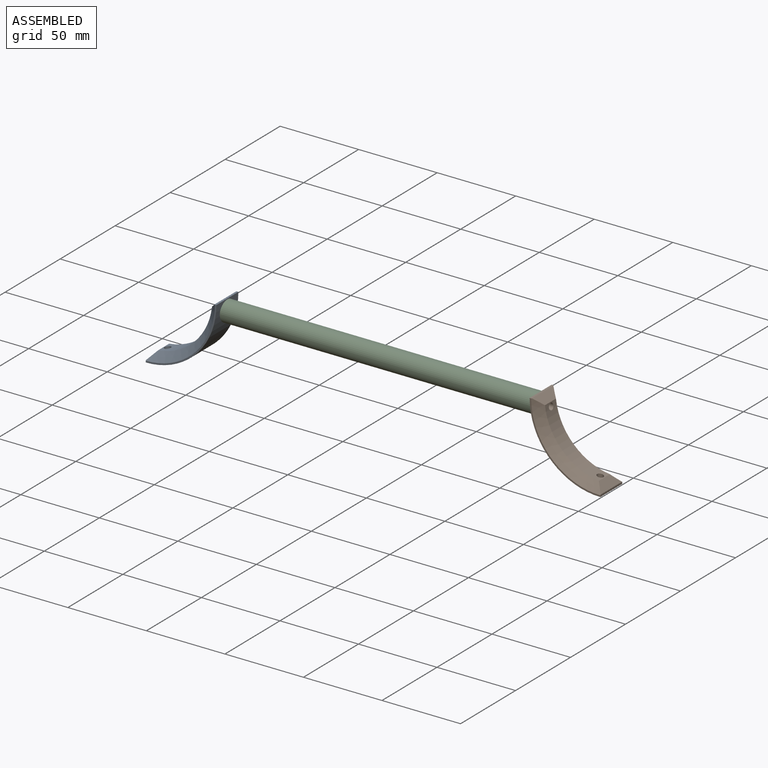
[diagram: assembled view]
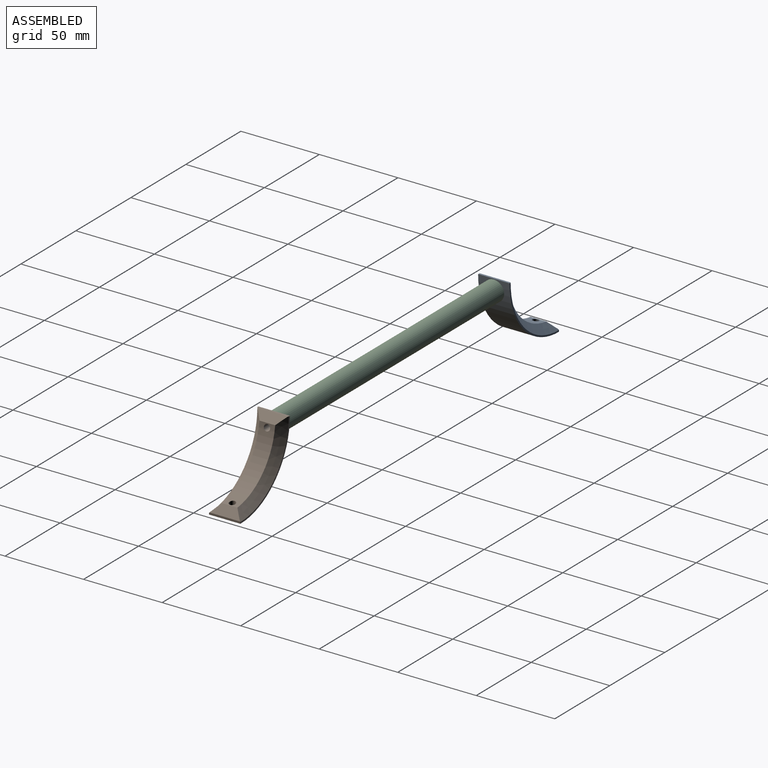
[diagram: assembled view, second angle]
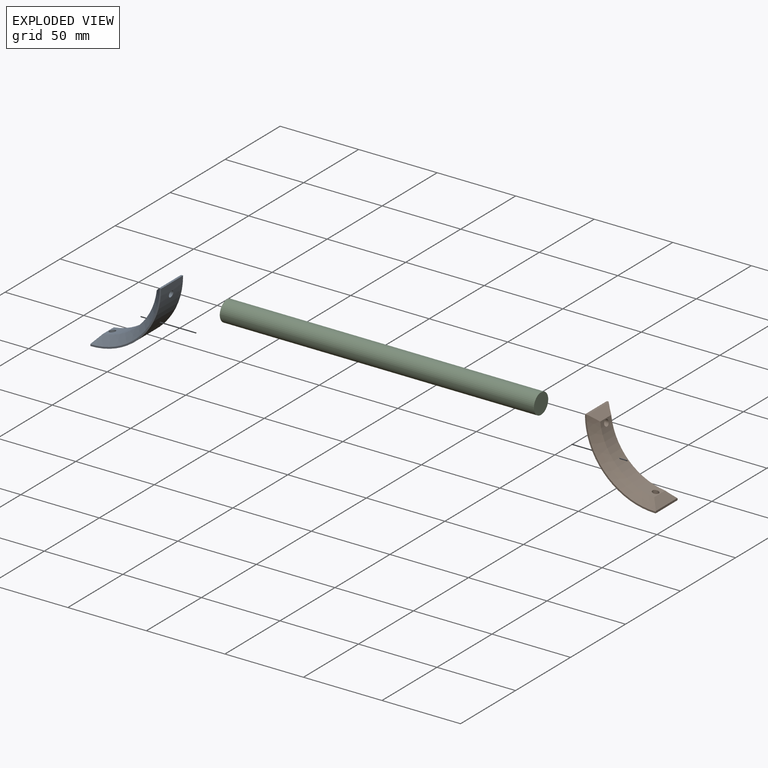
[diagram: exploded view]
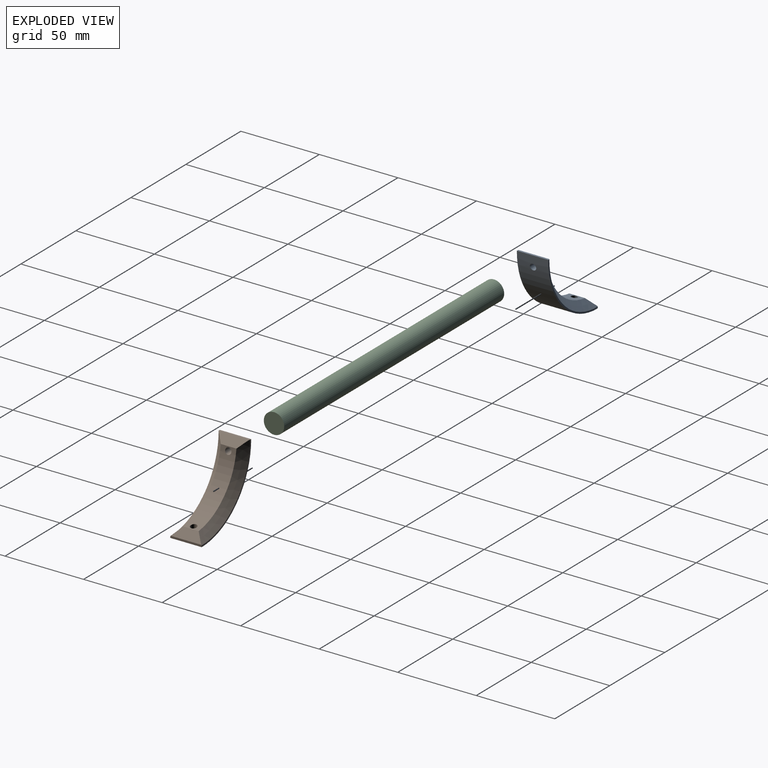
[diagram: exploded view, second angle]
ASSEMBLY  parts=3 mates=2
PART A: 12 faces, bbox 45x45x20 mm
  f0: cylinder r=39mm len=34.32mm, axis (0,0,-1), area 498.2mm2, adj f6,f7,f8,f9,f10,f11
  f1: plane 20x1.29mm, normal (1,0,0), area 25.6mm2, adj f2,f4,f5,f6,f7,f9
  f2: cylinder r=45mm len=45mm, axis (0,0,-1), area 1388.2mm2, adj f1,f3,f4,f5,f10,f11
  f3: plane 20x1.29mm, normal (0,-1,0), area 25.6mm2, adj f2,f4,f5,f6,f8,f9
  f4: plane 45x45mm, normal (0,0,1), area 69.9mm2, adj f1,f2,f3,f9
  f5: plane 45x45mm, normal (0,0,-1), area 69.9mm2, adj f1,f2,f3,f6
  f6: cone r=44mm half-angle=45deg, axis (0,0,-1), area 431.9mm2, adj f0,f1,f3,f5,f7,f8
  f7: plane 19.43x4.97mm, normal (0.75,-0.67,0), area 97.4mm2, adj f0,f1,f6,f9
  f8: plane 19.43x4.97mm, normal (0.67,-0.75,0), area 97.4mm2, adj f0,f3,f6,f9
  f9: cone r=39mm half-angle=45deg, axis (0,0,1), area 431.9mm2, adj f0,f1,f3,f4,f7,f8
  f10: cylinder r=2mm len=6.77mm, axis (1,0,0), area 76.5mm2, adj f0,f2
  f11: cylinder r=2mm len=6.77mm, axis (0,-1,0), area 76.5mm2, adj f0,f2
PART B: same geometry as A
PART C: 3 faces, bbox 13x13x200 mm
  f0: cylinder r=6.5mm len=200mm, axis (0,0,-1), area 8168.1mm2, adj f1,f2
  f1: plane 13x13mm, normal (0,0,1), area 132.7mm2, adj f0
  f2: plane 13x13mm, normal (0,0,-1), area 132.7mm2, adj f0
PLACE A rot(axis=(0,-0.71,0.71),180deg) t=(-134.79,33.28,25.02)mm
PLACE B rot(axis=(-1,0,0),90deg) t=(154.74,13.15,25.02)mm
PLACE C rot(axis=(0,-1,0),90deg) t=(9.98,23.22,18.02)mm
MATE fastened B.f10 <-> C.f0  axis (1,0,0) through (109.98,23.22,18.02)mm
MATE fastened A.f10 <-> C.f0  axis (-1,0,0) through (-90.02,23.22,18.02)mm
